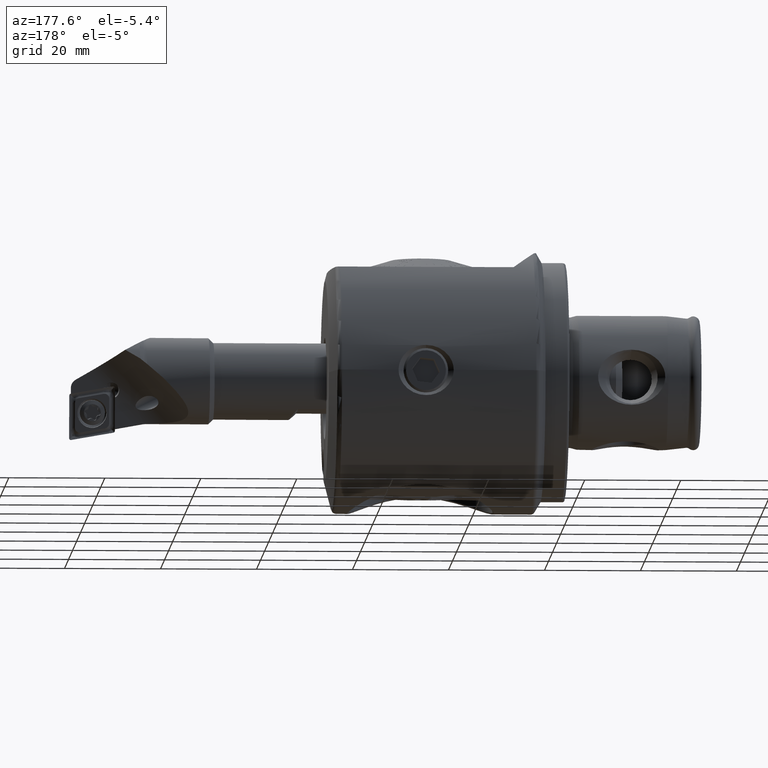
[diagram: clean part render]
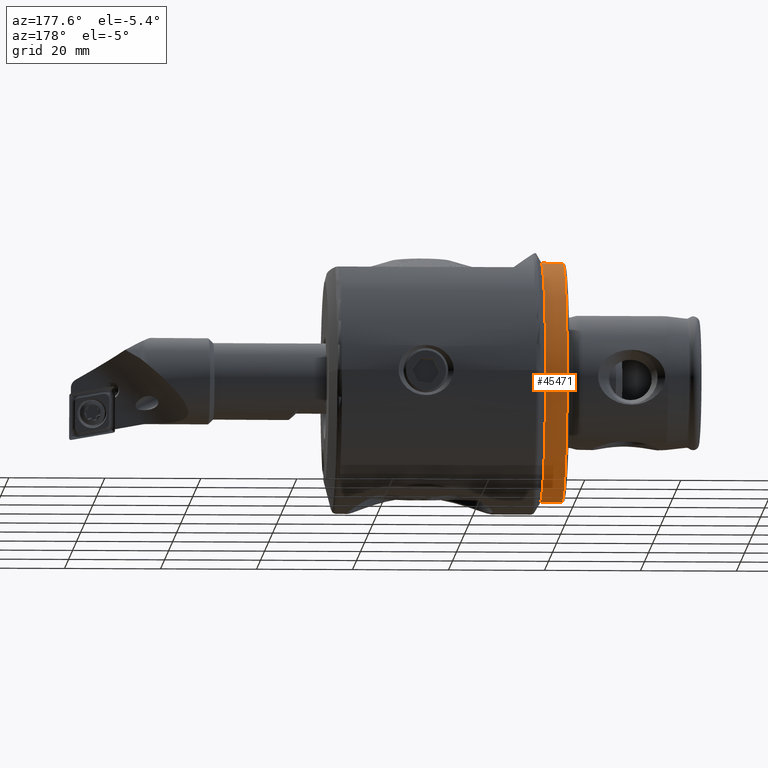
[diagram: same view with one face highlighted and labeled with its STEP entity id]
A machine part, auxiliary view. The second image highlights one B-rep face of the part: STEP entity #45471.
In plain terms, the highlighted cylindrical surface (partial cylindrical patch) has radius 25 mm, axis along (-1, -0, -0).
Its self-contained STEP definition (entity closure, byte-faithful):
#1113 = CIRCLE ( 'NONE', #8966, 25.00000000000000400 ) ;
#1460 = DIRECTION ( 'NONE',  ( -1.387778780781445400E-016, 1.000000000000000000, 0.0000000000000000000 ) ) ;
#2042 = CYLINDRICAL_SURFACE ( 'NONE', #31419, 25.00000000000000400 ) ;
#4812 = EDGE_CURVE ( 'NONE', #38129, #28528, #28215, .T. ) ;
#5077 = EDGE_CURVE ( 'NONE', #38129, #26119, #26567, .T. ) ;
#5679 = EDGE_CURVE ( 'NONE', #34633, #26119, #24452, .T. ) ;
#6283 = EDGE_CURVE ( 'NONE', #17917, #34633, #22715, .T. ) ;
#8966 = AXIS2_PLACEMENT_3D ( 'NONE', #43466, #22227, #1460 ) ;
#10758 = CARTESIAN_POINT ( 'NONE',  ( -27.99999999999999600, 0.0000000000000000000, 25.00000000000000400 ) ) ;
#11582 = DIRECTION ( 'NONE',  ( -1.000000000000000000, -0.0000000000000000000, -0.0000000000000000000 ) ) ;
#11719 = CARTESIAN_POINT ( 'NONE',  ( 0.5000000000000004400, 0.0000000000000000000, 25.00000000000000400 ) ) ;
#13529 = DIRECTION ( 'NONE',  ( -1.000000000000000000, -0.0000000000000000000, -0.0000000000000000000 ) ) ;
#14653 = CARTESIAN_POINT ( 'NONE',  ( 0.5000000000000004400, 3.061616997868383800E-015, -25.00000000000000400 ) ) ;
#14884 = CARTESIAN_POINT ( 'NONE',  ( -27.99999999999999600, 3.061616997868383400E-015, -25.00000000000000400 ) ) ;
#17221 = AXIS2_PLACEMENT_3D ( 'NONE', #30208, #30060, #29962 ) ;
#17917 = VERTEX_POINT ( 'NONE', #43386 ) ;
#18353 = CARTESIAN_POINT ( 'NONE',  ( -27.99999999999999600, 0.0000000000000000000, 0.0000000000000000000 ) ) ;
#21905 = DIRECTION ( 'NONE',  ( 0.0000000000000000000, 0.0000000000000000000, 1.000000000000000000 ) ) ;
#22227 = DIRECTION ( 'NONE',  ( 1.000000000000000000, 1.325327650935781300E-016, -0.0000000000000000000 ) ) ;
#22325 = VECTOR ( 'NONE', #11582, 1000.000000000000000 ) ;
#22715 = LINE ( 'NONE', #10758, #22325 ) ;
#24452 = CIRCLE ( 'NONE', #17221, 25.00000000000000400 ) ;
#24709 = ORIENTED_EDGE ( 'NONE', *, *, #4812, .F. ) ;
#25584 = ORIENTED_EDGE ( 'NONE', *, *, #5077, .T. ) ;
#25807 = ORIENTED_EDGE ( 'NONE', *, *, #5679, .F. ) ;
#26119 = VERTEX_POINT ( 'NONE', #14653 ) ;
#26523 = VECTOR ( 'NONE', #13529, 1000.000000000000000 ) ;
#26567 = LINE ( 'NONE', #14884, #26523 ) ;
#27857 = ORIENTED_EDGE ( 'NONE', *, *, #6283, .F. ) ;
#28049 = CARTESIAN_POINT ( 'NONE',  ( 5.000000000000004400, 3.061616997868383800E-015, -25.00000000000000400 ) ) ;
#28215 = CIRCLE ( 'NONE', #42733, 25.00000000000000400 ) ;
#28487 = EDGE_CURVE ( 'NONE', #28528, #17917, #1113, .T. ) ;
#28528 = VERTEX_POINT ( 'NONE', #40077 ) ;
#28632 = ORIENTED_EDGE ( 'NONE', *, *, #28487, .F. ) ;
#28737 = EDGE_LOOP ( 'NONE', ( #24709, #25584, #25807, #27857, #28632 ) ) ;
#29962 = DIRECTION ( 'NONE',  ( 0.0000000000000000000, 0.0000000000000000000, 1.000000000000000000 ) ) ;
#30060 = DIRECTION ( 'NONE',  ( -1.000000000000000000, -0.0000000000000000000, -0.0000000000000000000 ) ) ;
#30208 = CARTESIAN_POINT ( 'NONE',  ( 0.5000000000000004400, 0.0000000000000000000, 0.0000000000000000000 ) ) ;
#31419 = AXIS2_PLACEMENT_3D ( 'NONE', #18353, #43166, #21905 ) ;
#34633 = VERTEX_POINT ( 'NONE', #11719 ) ;
#38129 = VERTEX_POINT ( 'NONE', #28049 ) ;
#39338 = FACE_OUTER_BOUND ( 'NONE', #28737, .T. ) ;
#40077 = CARTESIAN_POINT ( 'NONE',  ( 5.000000000000000900, 25.00000000000000400, 0.0000000000000000000 ) ) ;
#42733 = AXIS2_PLACEMENT_3D ( 'NONE', #44521, #45152, #45316 ) ;
#43166 = DIRECTION ( 'NONE',  ( -1.000000000000000000, -0.0000000000000000000, -0.0000000000000000000 ) ) ;
#43386 = CARTESIAN_POINT ( 'NONE',  ( 5.000000000000004400, 4.574083617919685200E-031, 25.00000000000000400 ) ) ;
#43466 = CARTESIAN_POINT ( 'NONE',  ( 5.000000000000004400, 6.036761766664338300E-017, 0.0000000000000000000 ) ) ;
#44521 = CARTESIAN_POINT ( 'NONE',  ( 5.000000000000004400, 6.036761766664338300E-017, 0.0000000000000000000 ) ) ;
#45152 = DIRECTION ( 'NONE',  ( 1.000000000000000000, 1.325327650935781300E-016, -0.0000000000000000000 ) ) ;
#45316 = DIRECTION ( 'NONE',  ( -1.387778780781445400E-016, 1.000000000000000000, 0.0000000000000000000 ) ) ;
#45471 = ADVANCED_FACE ( 'NONE', ( #39338 ), #2042, .T. ) ;